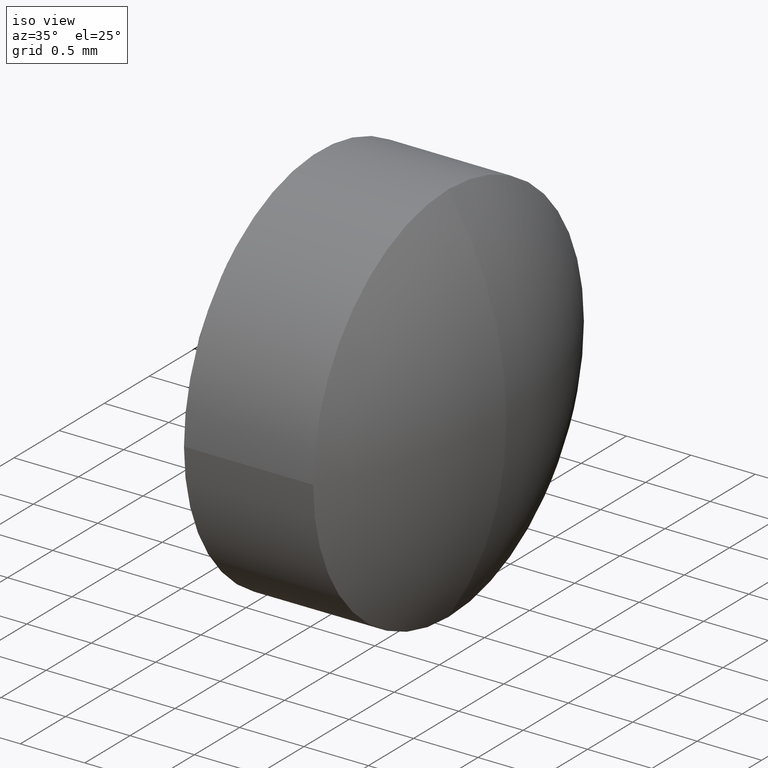
[diagram: clean part render]
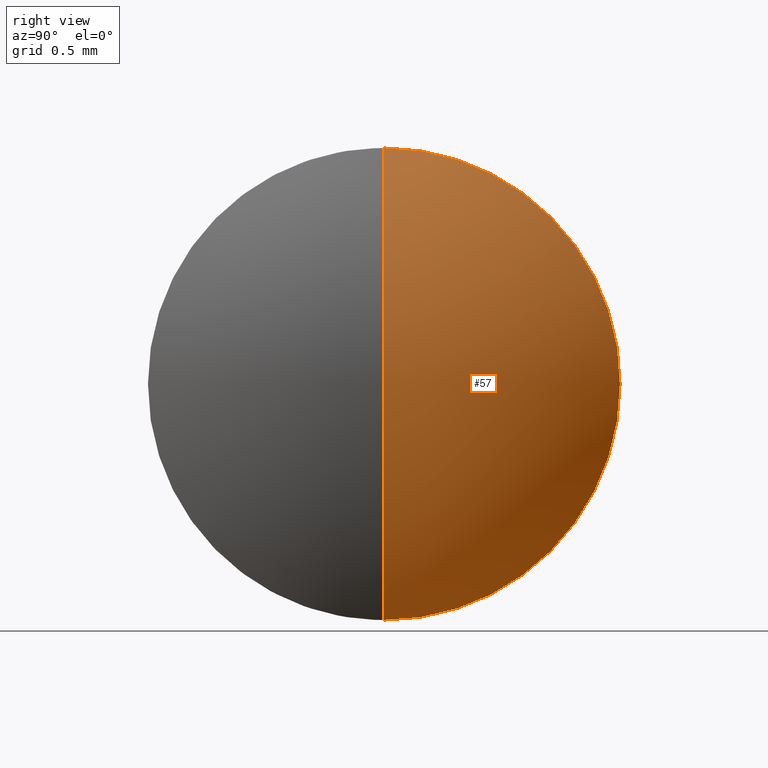
[diagram: tour spotlight — one face highlighted and labeled with its STEP entity id]
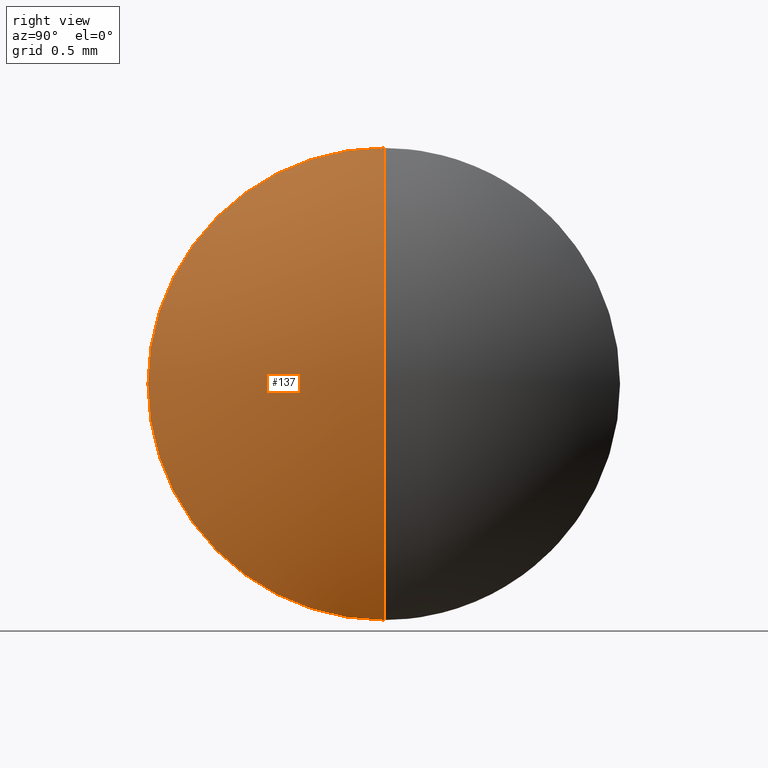
[diagram: tour spotlight — one face highlighted and labeled with its STEP entity id]
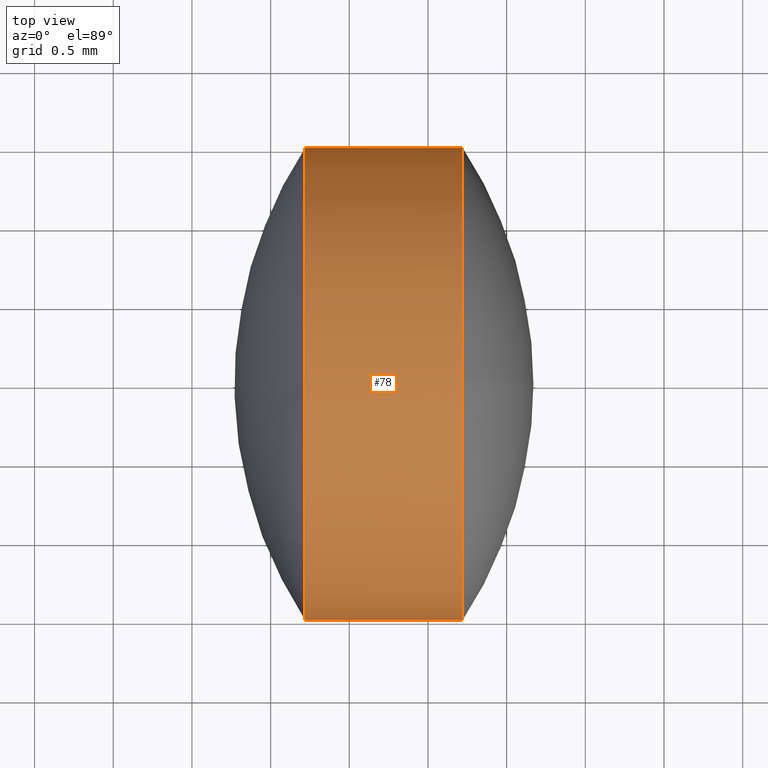
[diagram: tour spotlight — one face highlighted and labeled with its STEP entity id]
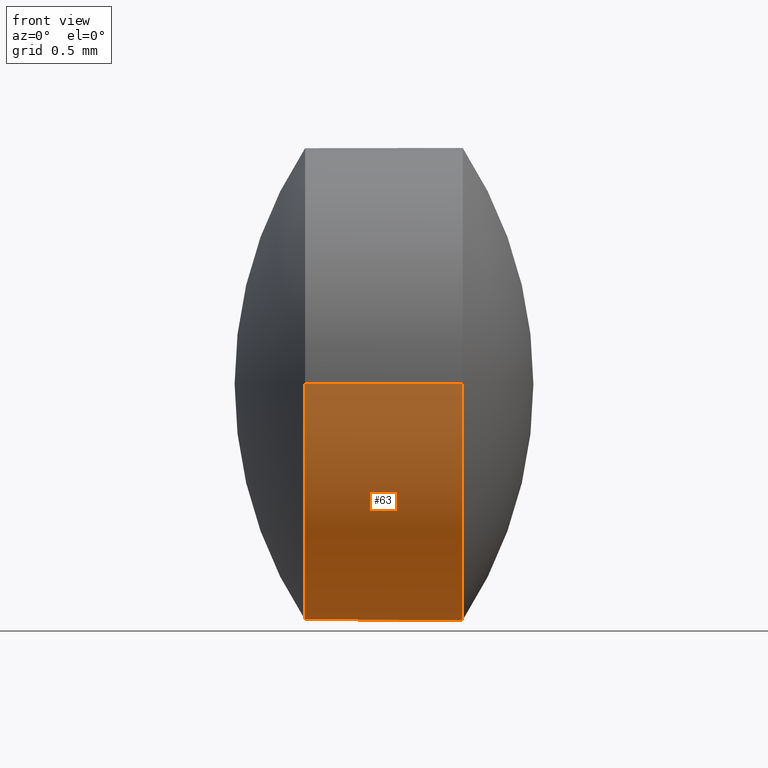
[diagram: tour spotlight — one face highlighted and labeled with its STEP entity id]
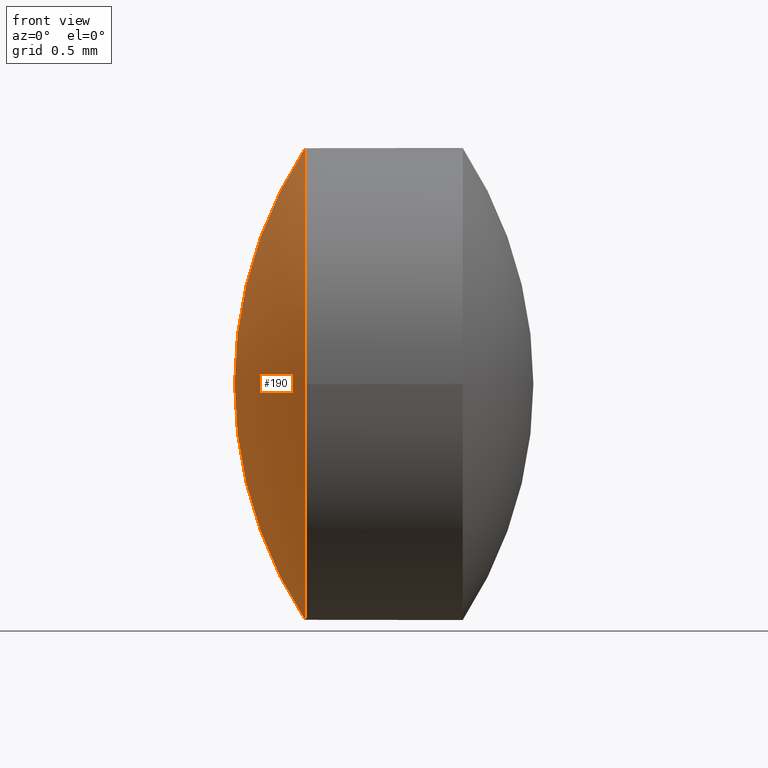
[diagram: tour spotlight — one face highlighted and labeled with its STEP entity id]
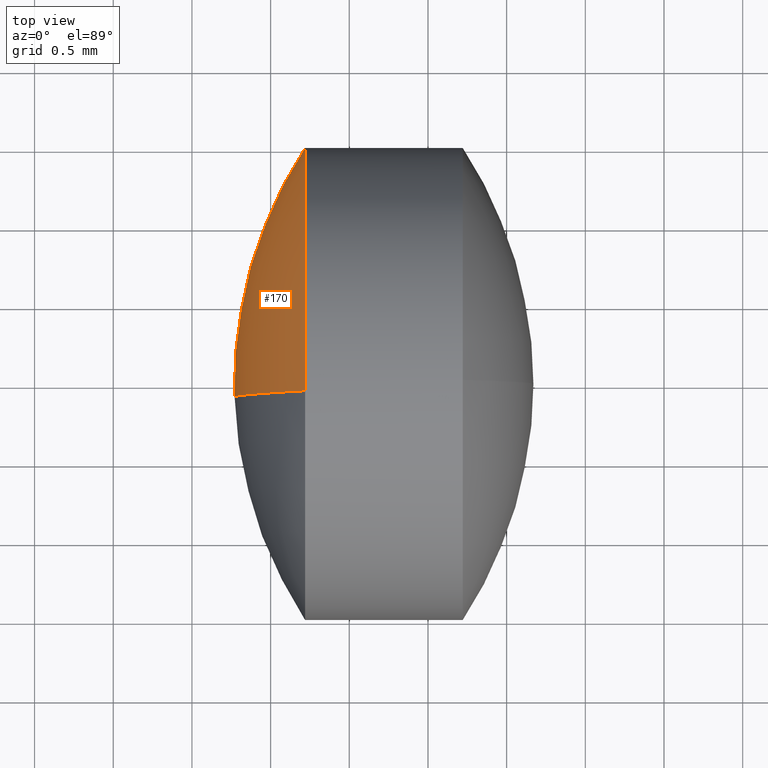
[diagram: tour spotlight — one face highlighted and labeled with its STEP entity id]
A machine part: a face-by-face anatomy tour. The part has 6 B-rep faces; the first image is the clean iso view, then the 6 largest visible faces are spotlighted one at a time (largest first), each with its STEP entity span.

Face 1 — right view, entity #57. In plain terms, the highlighted spherical surface has radius 2.73 mm.
Definition (entity closure, byte-faithful):
#2 = DIRECTION ( 'NONE',  ( 1.000000000000000000, 4.621236666965490468E-16, 0.000000000000000000 ) ) ;
#7 = DIRECTION ( 'NONE',  ( 0.000000000000000000, 0.000000000000000000, -1.000000000000000000 ) ) ;
#9 = CIRCLE ( 'NONE', #192, 2.729999999999999982 ) ;
#15 = ORIENTED_EDGE ( 'NONE', *, *, #117, .T. ) ;
#22 = CARTESIAN_POINT ( 'NONE',  ( -1.279013371367559770, 0.000000000000000000, -1.500000000000002442 ) ) ;
#27 = CARTESIAN_POINT ( 'NONE',  ( -1.279013371367559992, -2.074997055721540335E-16, 0.000000000000000000 ) ) ;
#35 = VERTEX_POINT ( 'NONE', #197 ) ;
#42 = VERTEX_POINT ( 'NONE', #22 ) ;
#47 = CIRCLE ( 'NONE', #119, 1.500000000000000000 ) ;
#48 = DIRECTION ( 'NONE',  ( 1.000000000000000000, 0.000000000000000000, 0.000000000000000000 ) ) ;
#57 = ADVANCED_FACE ( 'NONE', ( #173 ), #217, .T. ) ;
#60 = ORIENTED_EDGE ( 'NONE', *, *, #222, .F. ) ;
#73 = EDGE_CURVE ( 'NONE', #42, #186, #47, .T. ) ;
#75 = CIRCLE ( 'NONE', #245, 1.500000000000000000 ) ;
#77 = ORIENTED_EDGE ( 'NONE', *, *, #73, .T. ) ;
#80 = CARTESIAN_POINT ( 'NONE',  ( -3.559999999999999609, 0.000000000000000000, 0.000000000000000000 ) ) ;
#84 = DIRECTION ( 'NONE',  ( 0.000000000000000000, 1.000000000000000000, 0.000000000000000000 ) ) ;
#88 = DIRECTION ( 'NONE',  ( 0.000000000000000000, -1.000000000000000000, 0.000000000000000000 ) ) ;
#117 = EDGE_CURVE ( 'NONE', #186, #35, #75, .T. ) ;
#119 = AXIS2_PLACEMENT_3D ( 'NONE', #27, #2, #146 ) ;
#128 = CARTESIAN_POINT ( 'NONE',  ( -1.279013371367559992, -2.074997055721540335E-16, 0.000000000000000000 ) ) ;
#134 = DIRECTION ( 'NONE',  ( 0.000000000000000000, 0.000000000000000000, -1.000000000000000000 ) ) ;
#146 = DIRECTION ( 'NONE',  ( 0.000000000000000000, 0.000000000000000000, -1.000000000000000000 ) ) ;
#173 = FACE_OUTER_BOUND ( 'NONE', #210, .T. ) ;
#183 = AXIS2_PLACEMENT_3D ( 'NONE', #80, #84, #48 ) ;
#186 = VERTEX_POINT ( 'NONE', #203 ) ;
#192 = AXIS2_PLACEMENT_3D ( 'NONE', #240, #88, #134 ) ;
#197 = CARTESIAN_POINT ( 'NONE',  ( -1.279013371367559770, 0.000000000000000000, 1.500000000000002442 ) ) ;
#199 = DIRECTION ( 'NONE',  ( 1.000000000000000000, 4.621236666965490468E-16, 0.000000000000000000 ) ) ;
#203 = CARTESIAN_POINT ( 'NONE',  ( -1.279013371367560659, 1.500000000000000000, 0.000000000000000000 ) ) ;
#210 = EDGE_LOOP ( 'NONE', ( #60, #77, #15 ) ) ;
#217 = SPHERICAL_SURFACE ( 'NONE', #183, 2.729999999999999982 ) ;
#222 = EDGE_CURVE ( 'NONE', #42, #35, #9, .T. ) ;
#240 = CARTESIAN_POINT ( 'NONE',  ( -3.559999999999999609, 0.000000000000000000, 0.000000000000000000 ) ) ;
#245 = AXIS2_PLACEMENT_3D ( 'NONE', #128, #199, #7 ) ;

Face 2 — right view, entity #137. In plain terms, the highlighted spherical surface has radius 2.73 mm.
Definition (entity closure, byte-faithful):
#1 = CARTESIAN_POINT ( 'NONE',  ( -1.279013371367559992, -2.074997055721540335E-16, 0.000000000000000000 ) ) ;
#6 = AXIS2_PLACEMENT_3D ( 'NONE', #23, #235, #101 ) ;
#8 = DIRECTION ( 'NONE',  ( 0.000000000000000000, 0.000000000000000000, -1.000000000000000000 ) ) ;
#9 = CIRCLE ( 'NONE', #192, 2.729999999999999982 ) ;
#17 = EDGE_LOOP ( 'NONE', ( #193, #212, #113 ) ) ;
#22 = CARTESIAN_POINT ( 'NONE',  ( -1.279013371367559770, 0.000000000000000000, -1.500000000000002442 ) ) ;
#23 = CARTESIAN_POINT ( 'NONE',  ( -1.279013371367559992, -2.074997055721540335E-16, 0.000000000000000000 ) ) ;
#34 = CARTESIAN_POINT ( 'NONE',  ( -1.279013371367559326, -1.500000000000000222, 1.836970198721029934E-16 ) ) ;
#35 = VERTEX_POINT ( 'NONE', #197 ) ;
#42 = VERTEX_POINT ( 'NONE', #22 ) ;
#62 = DIRECTION ( 'NONE',  ( 1.000000000000000000, 0.000000000000000000, 0.000000000000000000 ) ) ;
#66 = DIRECTION ( 'NONE',  ( 0.000000000000000000, 1.000000000000000000, 0.000000000000000000 ) ) ;
#85 = CIRCLE ( 'NONE', #107, 1.500000000000000000 ) ;
#87 = CIRCLE ( 'NONE', #6, 1.500000000000000000 ) ;
#88 = DIRECTION ( 'NONE',  ( 0.000000000000000000, -1.000000000000000000, 0.000000000000000000 ) ) ;
#101 = DIRECTION ( 'NONE',  ( 0.000000000000000000, 0.000000000000000000, -1.000000000000000000 ) ) ;
#107 = AXIS2_PLACEMENT_3D ( 'NONE', #1, #112, #8 ) ;
#112 = DIRECTION ( 'NONE',  ( 1.000000000000000000, 4.621236666965490468E-16, 0.000000000000000000 ) ) ;
#113 = ORIENTED_EDGE ( 'NONE', *, *, #206, .T. ) ;
#129 = EDGE_CURVE ( 'NONE', #208, #42, #87, .T. ) ;
#134 = DIRECTION ( 'NONE',  ( 0.000000000000000000, 0.000000000000000000, -1.000000000000000000 ) ) ;
#137 = ADVANCED_FACE ( 'NONE', ( #142 ), #143, .T. ) ;
#142 = FACE_OUTER_BOUND ( 'NONE', #17, .T. ) ;
#143 = SPHERICAL_SURFACE ( 'NONE', #163, 2.729999999999999982 ) ;
#163 = AXIS2_PLACEMENT_3D ( 'NONE', #231, #66, #62 ) ;
#192 = AXIS2_PLACEMENT_3D ( 'NONE', #240, #88, #134 ) ;
#193 = ORIENTED_EDGE ( 'NONE', *, *, #129, .T. ) ;
#197 = CARTESIAN_POINT ( 'NONE',  ( -1.279013371367559770, 0.000000000000000000, 1.500000000000002442 ) ) ;
#206 = EDGE_CURVE ( 'NONE', #35, #208, #85, .T. ) ;
#208 = VERTEX_POINT ( 'NONE', #34 ) ;
#212 = ORIENTED_EDGE ( 'NONE', *, *, #222, .T. ) ;
#222 = EDGE_CURVE ( 'NONE', #42, #35, #9, .T. ) ;
#231 = CARTESIAN_POINT ( 'NONE',  ( -3.559999999999999609, 0.000000000000000000, 0.000000000000000000 ) ) ;
#235 = DIRECTION ( 'NONE',  ( 1.000000000000000000, 4.621236666965490468E-16, 0.000000000000000000 ) ) ;
#240 = CARTESIAN_POINT ( 'NONE',  ( -3.559999999999999609, 0.000000000000000000, 0.000000000000000000 ) ) ;

Face 3 — top view, entity #78. In plain terms, the highlighted cylindrical surface (partial cylindrical patch) has radius 1.5 mm, axis along (1, 0, 0).
Definition (entity closure, byte-faithful):
#1 = CARTESIAN_POINT ( 'NONE',  ( -1.279013371367559992, -2.074997055721540335E-16, 0.000000000000000000 ) ) ;
#3 = DIRECTION ( 'NONE',  ( 0.000000000000000000, 0.000000000000000000, -1.000000000000000000 ) ) ;
#7 = DIRECTION ( 'NONE',  ( 0.000000000000000000, 0.000000000000000000, -1.000000000000000000 ) ) ;
#8 = DIRECTION ( 'NONE',  ( 0.000000000000000000, 0.000000000000000000, -1.000000000000000000 ) ) ;
#28 = CARTESIAN_POINT ( 'NONE',  ( -1.780000000000000471, 1.499999999999999556, 0.000000000000000000 ) ) ;
#33 = VECTOR ( 'NONE', #46, 1000.000000000000000 ) ;
#34 = CARTESIAN_POINT ( 'NONE',  ( -1.279013371367559326, -1.500000000000000222, 1.836970198721029934E-16 ) ) ;
#35 = VERTEX_POINT ( 'NONE', #197 ) ;
#43 = VERTEX_POINT ( 'NONE', #99 ) ;
#46 = DIRECTION ( 'NONE',  ( 1.000000000000000000, 4.625929269271479997E-16, 0.000000000000000000 ) ) ;
#59 = VERTEX_POINT ( 'NONE', #158 ) ;
#67 = DIRECTION ( 'NONE',  ( 1.000000000000000000, 4.621236666965490468E-16, 0.000000000000000000 ) ) ;
#68 = CARTESIAN_POINT ( 'NONE',  ( -2.280986628632439839, -6.705352611512889582E-16, 0.000000000000000000 ) ) ;
#75 = CIRCLE ( 'NONE', #245, 1.500000000000000000 ) ;
#78 = ADVANCED_FACE ( 'NONE', ( #162 ), #232, .T. ) ;
#85 = CIRCLE ( 'NONE', #107, 1.500000000000000000 ) ;
#95 = VECTOR ( 'NONE', #218, 1000.000000000000000 ) ;
#97 = ORIENTED_EDGE ( 'NONE', *, *, #206, .F. ) ;
#99 = CARTESIAN_POINT ( 'NONE',  ( -2.280986628632440727, 1.499999999999999334, 0.000000000000000000 ) ) ;
#105 = DIRECTION ( 'NONE',  ( 0.000000000000000000, 0.000000000000000000, -1.000000000000000000 ) ) ;
#107 = AXIS2_PLACEMENT_3D ( 'NONE', #1, #112, #8 ) ;
#110 = CIRCLE ( 'NONE', #144, 1.500000000000000000 ) ;
#112 = DIRECTION ( 'NONE',  ( 1.000000000000000000, 4.621236666965490468E-16, 0.000000000000000000 ) ) ;
#117 = EDGE_CURVE ( 'NONE', #186, #35, #75, .T. ) ;
#126 = DIRECTION ( 'NONE',  ( -4.336808689942017736E-16, 1.000000000000000000, 0.000000000000000000 ) ) ;
#127 = CARTESIAN_POINT ( 'NONE',  ( -1.779999999999999138, -1.500000000000000444, 1.836970198721029934E-16 ) ) ;
#128 = CARTESIAN_POINT ( 'NONE',  ( -1.279013371367559992, -2.074997055721540335E-16, 0.000000000000000000 ) ) ;
#132 = CARTESIAN_POINT ( 'NONE',  ( -2.280986628632438951, -1.500000000000000888, 1.836970198721030427E-16 ) ) ;
#133 = AXIS2_PLACEMENT_3D ( 'NONE', #201, #177, #126 ) ;
#144 = AXIS2_PLACEMENT_3D ( 'NONE', #68, #67, #3 ) ;
#145 = LINE ( 'NONE', #127, #33 ) ;
#152 = EDGE_CURVE ( 'NONE', #43, #59, #110, .T. ) ;
#157 = ORIENTED_EDGE ( 'NONE', *, *, #195, .T. ) ;
#158 = CARTESIAN_POINT ( 'NONE',  ( -2.280986628632439839, -0.06858995319693821091, 1.498430985504654922 ) ) ;
#159 = AXIS2_PLACEMENT_3D ( 'NONE', #237, #213, #105 ) ;
#161 = EDGE_CURVE ( 'NONE', #247, #208, #145, .T. ) ;
#162 = FACE_OUTER_BOUND ( 'NONE', #211, .T. ) ;
#171 = EDGE_CURVE ( 'NONE', #43, #186, #202, .T. ) ;
#177 = DIRECTION ( 'NONE',  ( 1.000000000000000000, 4.625929269271479997E-16, 0.000000000000000000 ) ) ;
#186 = VERTEX_POINT ( 'NONE', #203 ) ;
#187 = ORIENTED_EDGE ( 'NONE', *, *, #171, .F. ) ;
#195 = EDGE_CURVE ( 'NONE', #59, #247, #243, .T. ) ;
#197 = CARTESIAN_POINT ( 'NONE',  ( -1.279013371367559770, 0.000000000000000000, 1.500000000000002442 ) ) ;
#199 = DIRECTION ( 'NONE',  ( 1.000000000000000000, 4.621236666965490468E-16, 0.000000000000000000 ) ) ;
#201 = CARTESIAN_POINT ( 'NONE',  ( -1.779999999999999805, -4.390174833617219643E-16, 0.000000000000000000 ) ) ;
#202 = LINE ( 'NONE', #28, #95 ) ;
#203 = CARTESIAN_POINT ( 'NONE',  ( -1.279013371367560659, 1.500000000000000000, 0.000000000000000000 ) ) ;
#206 = EDGE_CURVE ( 'NONE', #35, #208, #85, .T. ) ;
#208 = VERTEX_POINT ( 'NONE', #34 ) ;
#211 = EDGE_LOOP ( 'NONE', ( #228, #157, #246, #97, #226, #187 ) ) ;
#213 = DIRECTION ( 'NONE',  ( 1.000000000000000000, 4.621236666965490468E-16, 0.000000000000000000 ) ) ;
#218 = DIRECTION ( 'NONE',  ( 1.000000000000000000, 4.625929269271479997E-16, 0.000000000000000000 ) ) ;
#226 = ORIENTED_EDGE ( 'NONE', *, *, #117, .F. ) ;
#228 = ORIENTED_EDGE ( 'NONE', *, *, #152, .T. ) ;
#232 = CYLINDRICAL_SURFACE ( 'NONE', #133, 1.500000000000000000 ) ;
#237 = CARTESIAN_POINT ( 'NONE',  ( -2.280986628632439839, -6.705352611512889582E-16, 0.000000000000000000 ) ) ;
#243 = CIRCLE ( 'NONE', #159, 1.500000000000000000 ) ;
#245 = AXIS2_PLACEMENT_3D ( 'NONE', #128, #199, #7 ) ;
#246 = ORIENTED_EDGE ( 'NONE', *, *, #161, .T. ) ;
#247 = VERTEX_POINT ( 'NONE', #132 ) ;

Face 4 — front view, entity #63. In plain terms, the highlighted cylindrical surface (partial cylindrical patch) has radius 1.5 mm, axis along (1, 0, 0).
Definition (entity closure, byte-faithful):
#2 = DIRECTION ( 'NONE',  ( 1.000000000000000000, 4.621236666965490468E-16, 0.000000000000000000 ) ) ;
#5 = DIRECTION ( 'NONE',  ( -4.336808689942017736E-16, 1.000000000000000000, 0.000000000000000000 ) ) ;
#6 = AXIS2_PLACEMENT_3D ( 'NONE', #23, #235, #101 ) ;
#22 = CARTESIAN_POINT ( 'NONE',  ( -1.279013371367559770, 0.000000000000000000, -1.500000000000002442 ) ) ;
#23 = CARTESIAN_POINT ( 'NONE',  ( -1.279013371367559992, -2.074997055721540335E-16, 0.000000000000000000 ) ) ;
#27 = CARTESIAN_POINT ( 'NONE',  ( -1.279013371367559992, -2.074997055721540335E-16, 0.000000000000000000 ) ) ;
#28 = CARTESIAN_POINT ( 'NONE',  ( -1.780000000000000471, 1.499999999999999556, 0.000000000000000000 ) ) ;
#33 = VECTOR ( 'NONE', #46, 1000.000000000000000 ) ;
#34 = CARTESIAN_POINT ( 'NONE',  ( -1.279013371367559326, -1.500000000000000222, 1.836970198721029934E-16 ) ) ;
#41 = ORIENTED_EDGE ( 'NONE', *, *, #171, .T. ) ;
#42 = VERTEX_POINT ( 'NONE', #22 ) ;
#43 = VERTEX_POINT ( 'NONE', #99 ) ;
#44 = CYLINDRICAL_SURFACE ( 'NONE', #194, 1.500000000000000000 ) ;
#46 = DIRECTION ( 'NONE',  ( 1.000000000000000000, 4.625929269271479997E-16, 0.000000000000000000 ) ) ;
#47 = CIRCLE ( 'NONE', #119, 1.500000000000000000 ) ;
#50 = FACE_OUTER_BOUND ( 'NONE', #118, .T. ) ;
#52 = CIRCLE ( 'NONE', #141, 1.500000000000000000 ) ;
#61 = ORIENTED_EDGE ( 'NONE', *, *, #129, .F. ) ;
#63 = ADVANCED_FACE ( 'NONE', ( #50 ), #44, .T. ) ;
#64 = DIRECTION ( 'NONE',  ( 0.000000000000000000, 0.000000000000000000, -1.000000000000000000 ) ) ;
#73 = EDGE_CURVE ( 'NONE', #42, #186, #47, .T. ) ;
#76 = VERTEX_POINT ( 'NONE', #234 ) ;
#86 = CARTESIAN_POINT ( 'NONE',  ( -1.779999999999999805, -4.390174833617219643E-16, 0.000000000000000000 ) ) ;
#87 = CIRCLE ( 'NONE', #6, 1.500000000000000000 ) ;
#95 = VECTOR ( 'NONE', #218, 1000.000000000000000 ) ;
#99 = CARTESIAN_POINT ( 'NONE',  ( -2.280986628632440727, 1.499999999999999334, 0.000000000000000000 ) ) ;
#101 = DIRECTION ( 'NONE',  ( 0.000000000000000000, 0.000000000000000000, -1.000000000000000000 ) ) ;
#102 = CARTESIAN_POINT ( 'NONE',  ( -2.280986628632439839, -6.705352611512889582E-16, 0.000000000000000000 ) ) ;
#118 = EDGE_LOOP ( 'NONE', ( #122, #151, #139, #41, #156, #61 ) ) ;
#119 = AXIS2_PLACEMENT_3D ( 'NONE', #27, #2, #146 ) ;
#122 = ORIENTED_EDGE ( 'NONE', *, *, #161, .F. ) ;
#124 = AXIS2_PLACEMENT_3D ( 'NONE', #102, #140, #64 ) ;
#125 = DIRECTION ( 'NONE',  ( 1.000000000000000000, 4.625929269271479997E-16, 0.000000000000000000 ) ) ;
#127 = CARTESIAN_POINT ( 'NONE',  ( -1.779999999999999138, -1.500000000000000444, 1.836970198721029934E-16 ) ) ;
#129 = EDGE_CURVE ( 'NONE', #208, #42, #87, .T. ) ;
#132 = CARTESIAN_POINT ( 'NONE',  ( -2.280986628632438951, -1.500000000000000888, 1.836970198721030427E-16 ) ) ;
#139 = ORIENTED_EDGE ( 'NONE', *, *, #184, .T. ) ;
#140 = DIRECTION ( 'NONE',  ( 1.000000000000000000, 4.621236666965490468E-16, 0.000000000000000000 ) ) ;
#141 = AXIS2_PLACEMENT_3D ( 'NONE', #167, #224, #185 ) ;
#145 = LINE ( 'NONE', #127, #33 ) ;
#146 = DIRECTION ( 'NONE',  ( 0.000000000000000000, 0.000000000000000000, -1.000000000000000000 ) ) ;
#151 = ORIENTED_EDGE ( 'NONE', *, *, #244, .T. ) ;
#156 = ORIENTED_EDGE ( 'NONE', *, *, #73, .F. ) ;
#161 = EDGE_CURVE ( 'NONE', #247, #208, #145, .T. ) ;
#167 = CARTESIAN_POINT ( 'NONE',  ( -2.280986628632439839, -6.705352611512889582E-16, 0.000000000000000000 ) ) ;
#171 = EDGE_CURVE ( 'NONE', #43, #186, #202, .T. ) ;
#184 = EDGE_CURVE ( 'NONE', #76, #43, #225, .T. ) ;
#185 = DIRECTION ( 'NONE',  ( 0.000000000000000000, 0.000000000000000000, -1.000000000000000000 ) ) ;
#186 = VERTEX_POINT ( 'NONE', #203 ) ;
#194 = AXIS2_PLACEMENT_3D ( 'NONE', #86, #125, #5 ) ;
#202 = LINE ( 'NONE', #28, #95 ) ;
#203 = CARTESIAN_POINT ( 'NONE',  ( -1.279013371367560659, 1.500000000000000000, 0.000000000000000000 ) ) ;
#208 = VERTEX_POINT ( 'NONE', #34 ) ;
#218 = DIRECTION ( 'NONE',  ( 1.000000000000000000, 4.625929269271479997E-16, 0.000000000000000000 ) ) ;
#224 = DIRECTION ( 'NONE',  ( 1.000000000000000000, 4.621236666965490468E-16, 0.000000000000000000 ) ) ;
#225 = CIRCLE ( 'NONE', #124, 1.500000000000000000 ) ;
#234 = CARTESIAN_POINT ( 'NONE',  ( -2.280986628632439839, -0.06858995319693821091, -1.498430985504654922 ) ) ;
#235 = DIRECTION ( 'NONE',  ( 1.000000000000000000, 4.621236666965490468E-16, 0.000000000000000000 ) ) ;
#244 = EDGE_CURVE ( 'NONE', #247, #76, #52, .T. ) ;
#247 = VERTEX_POINT ( 'NONE', #132 ) ;

Face 5 — front view, entity #190. In plain terms, the highlighted spherical surface has radius 2.73 mm.
Definition (entity closure, byte-faithful):
#21 = AXIS2_PLACEMENT_3D ( 'NONE', #49, #160, #174 ) ;
#29 = DIRECTION ( 'NONE',  ( 0.03005671451342888795, -0.9995481948924014315, 3.582458973934590859E-33 ) ) ;
#49 = CARTESIAN_POINT ( 'NONE',  ( 0.000000000000000000, 0.000000000000000000, 0.000000000000000000 ) ) ;
#52 = CIRCLE ( 'NONE', #141, 1.500000000000000000 ) ;
#55 = ORIENTED_EDGE ( 'NONE', *, *, #123, .F. ) ;
#59 = VERTEX_POINT ( 'NONE', #158 ) ;
#76 = VERTEX_POINT ( 'NONE', #234 ) ;
#79 = ORIENTED_EDGE ( 'NONE', *, *, #195, .F. ) ;
#98 = EDGE_LOOP ( 'NONE', ( #55, #223, #79 ) ) ;
#104 = SPHERICAL_SURFACE ( 'NONE', #131, 2.729999999999999982 ) ;
#105 = DIRECTION ( 'NONE',  ( 0.000000000000000000, 0.000000000000000000, -1.000000000000000000 ) ) ;
#123 = EDGE_CURVE ( 'NONE', #76, #59, #215, .T. ) ;
#131 = AXIS2_PLACEMENT_3D ( 'NONE', #178, #29, #164 ) ;
#132 = CARTESIAN_POINT ( 'NONE',  ( -2.280986628632438951, -1.500000000000000888, 1.836970198721030427E-16 ) ) ;
#141 = AXIS2_PLACEMENT_3D ( 'NONE', #167, #224, #185 ) ;
#158 = CARTESIAN_POINT ( 'NONE',  ( -2.280986628632439839, -0.06858995319693821091, 1.498430985504654922 ) ) ;
#159 = AXIS2_PLACEMENT_3D ( 'NONE', #237, #213, #105 ) ;
#160 = DIRECTION ( 'NONE',  ( -0.03005671451342888795, 0.9995481948924015425, -3.081487911019575996E-33 ) ) ;
#164 = DIRECTION ( 'NONE',  ( -0.9995481948924014315, -0.03005671451342888795, 0.000000000000000000 ) ) ;
#167 = CARTESIAN_POINT ( 'NONE',  ( -2.280986628632439839, -6.705352611512889582E-16, 0.000000000000000000 ) ) ;
#174 = DIRECTION ( 'NONE',  ( -0.9995481948924014315, -0.03005671451342888101, 0.000000000000000000 ) ) ;
#176 = FACE_OUTER_BOUND ( 'NONE', #98, .T. ) ;
#178 = CARTESIAN_POINT ( 'NONE',  ( 0.000000000000000000, 0.000000000000000000, 0.000000000000000000 ) ) ;
#185 = DIRECTION ( 'NONE',  ( 0.000000000000000000, 0.000000000000000000, -1.000000000000000000 ) ) ;
#190 = ADVANCED_FACE ( 'NONE', ( #176 ), #104, .T. ) ;
#195 = EDGE_CURVE ( 'NONE', #59, #247, #243, .T. ) ;
#213 = DIRECTION ( 'NONE',  ( 1.000000000000000000, 4.621236666965490468E-16, 0.000000000000000000 ) ) ;
#215 = CIRCLE ( 'NONE', #21, 2.730000000000000426 ) ;
#223 = ORIENTED_EDGE ( 'NONE', *, *, #244, .F. ) ;
#224 = DIRECTION ( 'NONE',  ( 1.000000000000000000, 4.621236666965490468E-16, 0.000000000000000000 ) ) ;
#234 = CARTESIAN_POINT ( 'NONE',  ( -2.280986628632439839, -0.06858995319693821091, -1.498430985504654922 ) ) ;
#237 = CARTESIAN_POINT ( 'NONE',  ( -2.280986628632439839, -6.705352611512889582E-16, 0.000000000000000000 ) ) ;
#243 = CIRCLE ( 'NONE', #159, 1.500000000000000000 ) ;
#244 = EDGE_CURVE ( 'NONE', #247, #76, #52, .T. ) ;
#247 = VERTEX_POINT ( 'NONE', #132 ) ;

Face 6 — top view, entity #170. In plain terms, the highlighted spherical surface has radius 2.73 mm.
Definition (entity closure, byte-faithful):
#3 = DIRECTION ( 'NONE',  ( 0.000000000000000000, 0.000000000000000000, -1.000000000000000000 ) ) ;
#12 = AXIS2_PLACEMENT_3D ( 'NONE', #103, #200, #25 ) ;
#21 = AXIS2_PLACEMENT_3D ( 'NONE', #49, #160, #174 ) ;
#25 = DIRECTION ( 'NONE',  ( -0.9995481948924014315, -0.03005671451342888795, 0.000000000000000000 ) ) ;
#36 = ORIENTED_EDGE ( 'NONE', *, *, #152, .F. ) ;
#43 = VERTEX_POINT ( 'NONE', #99 ) ;
#49 = CARTESIAN_POINT ( 'NONE',  ( 0.000000000000000000, 0.000000000000000000, 0.000000000000000000 ) ) ;
#59 = VERTEX_POINT ( 'NONE', #158 ) ;
#64 = DIRECTION ( 'NONE',  ( 0.000000000000000000, 0.000000000000000000, -1.000000000000000000 ) ) ;
#67 = DIRECTION ( 'NONE',  ( 1.000000000000000000, 4.621236666965490468E-16, 0.000000000000000000 ) ) ;
#68 = CARTESIAN_POINT ( 'NONE',  ( -2.280986628632439839, -6.705352611512889582E-16, 0.000000000000000000 ) ) ;
#76 = VERTEX_POINT ( 'NONE', #234 ) ;
#83 = FACE_OUTER_BOUND ( 'NONE', #196, .T. ) ;
#92 = ORIENTED_EDGE ( 'NONE', *, *, #184, .F. ) ;
#99 = CARTESIAN_POINT ( 'NONE',  ( -2.280986628632440727, 1.499999999999999334, 0.000000000000000000 ) ) ;
#102 = CARTESIAN_POINT ( 'NONE',  ( -2.280986628632439839, -6.705352611512889582E-16, 0.000000000000000000 ) ) ;
#103 = CARTESIAN_POINT ( 'NONE',  ( 0.000000000000000000, 0.000000000000000000, 0.000000000000000000 ) ) ;
#110 = CIRCLE ( 'NONE', #144, 1.500000000000000000 ) ;
#120 = ORIENTED_EDGE ( 'NONE', *, *, #123, .T. ) ;
#123 = EDGE_CURVE ( 'NONE', #76, #59, #215, .T. ) ;
#124 = AXIS2_PLACEMENT_3D ( 'NONE', #102, #140, #64 ) ;
#140 = DIRECTION ( 'NONE',  ( 1.000000000000000000, 4.621236666965490468E-16, 0.000000000000000000 ) ) ;
#144 = AXIS2_PLACEMENT_3D ( 'NONE', #68, #67, #3 ) ;
#152 = EDGE_CURVE ( 'NONE', #43, #59, #110, .T. ) ;
#158 = CARTESIAN_POINT ( 'NONE',  ( -2.280986628632439839, -0.06858995319693821091, 1.498430985504654922 ) ) ;
#160 = DIRECTION ( 'NONE',  ( -0.03005671451342888795, 0.9995481948924015425, -3.081487911019575996E-33 ) ) ;
#170 = ADVANCED_FACE ( 'NONE', ( #83 ), #216, .T. ) ;
#174 = DIRECTION ( 'NONE',  ( -0.9995481948924014315, -0.03005671451342888101, 0.000000000000000000 ) ) ;
#184 = EDGE_CURVE ( 'NONE', #76, #43, #225, .T. ) ;
#196 = EDGE_LOOP ( 'NONE', ( #92, #120, #36 ) ) ;
#200 = DIRECTION ( 'NONE',  ( 0.03005671451342888795, -0.9995481948924014315, 3.582458973934590859E-33 ) ) ;
#215 = CIRCLE ( 'NONE', #21, 2.730000000000000426 ) ;
#216 = SPHERICAL_SURFACE ( 'NONE', #12, 2.729999999999999982 ) ;
#225 = CIRCLE ( 'NONE', #124, 1.500000000000000000 ) ;
#234 = CARTESIAN_POINT ( 'NONE',  ( -2.280986628632439839, -0.06858995319693821091, -1.498430985504654922 ) ) ;